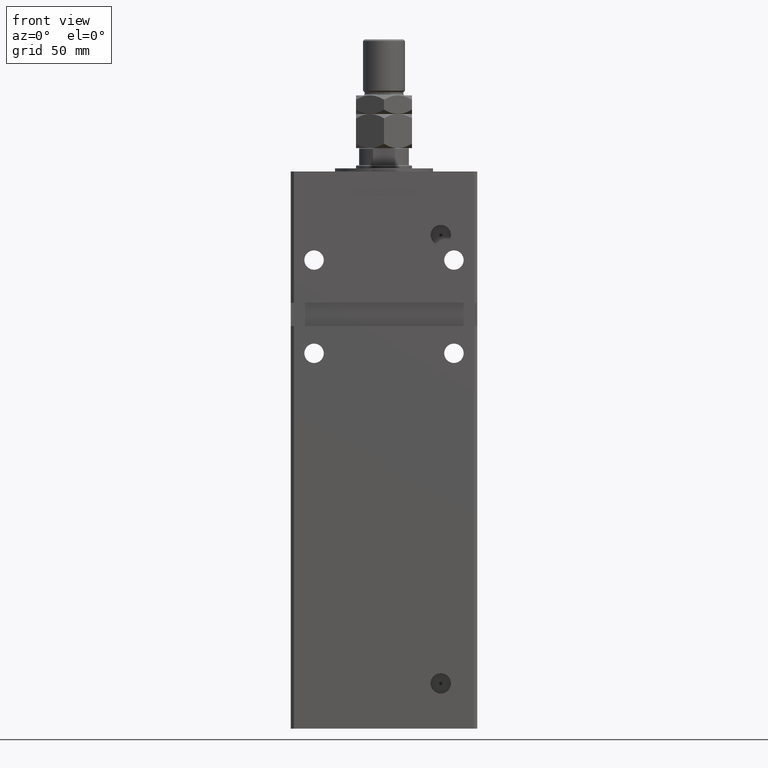
[diagram: clean part render]
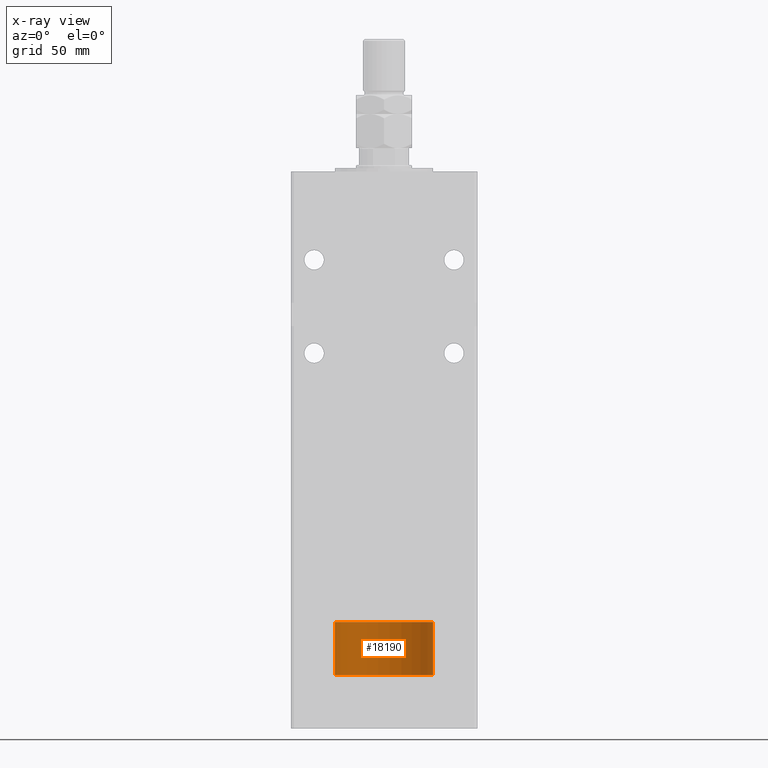
[diagram: x-ray — body ghosted, one internal face saturated and labeled with its STEP entity id]
A machine part, front view, then the same camera in x-ray: the body is ghosted and one INTERNAL B-rep face — a face not visible from any outside direction — is saturated and labeled: STEP entity #18190.
In plain terms, the highlighted cylindrical surface (partial cylindrical patch) has radius 31.5 mm, axis along (-0, -0, -1).
Its self-contained STEP definition (entity closure, byte-faithful):
#927 = DIRECTION ( 'NONE',  ( -0.000000000000000000, -0.000000000000000000, -1.000000000000000000 ) ) ;
#2639 = EDGE_CURVE ( 'NONE', #48900, #34422, #36712, .T. ) ;
#4393 = EDGE_CURVE ( 'NONE', #45283, #48900, #19642, .T. ) ;
#5123 = CARTESIAN_POINT ( 'NONE',  ( 31.50000000000000000, 3.857637417314162689E-15, 34.25000000000000000 ) ) ;
#6887 = CYLINDRICAL_SURFACE ( 'NONE', #25278, 31.50000000000000000 ) ;
#8702 = EDGE_CURVE ( 'NONE', #39990, #34422, #42618, .T. ) ;
#9232 = VECTOR ( 'NONE', #927, 1000.000000000000000 ) ;
#10042 = CARTESIAN_POINT ( 'NONE',  ( 31.50000000000000000, 3.857637417314162689E-15, 34.25000000000000000 ) ) ;
#10734 = DIRECTION ( 'NONE',  ( -0.000000000000000000, -0.000000000000000000, -1.000000000000000000 ) ) ;
#15730 = DIRECTION ( 'NONE',  ( -1.000000000000000000, 0.000000000000000000, 0.000000000000000000 ) ) ;
#18190 = ADVANCED_FACE ( 'NONE', ( #18301 ), #6887, .T. ) ;
#18301 = FACE_OUTER_BOUND ( 'NONE', #21395, .T. ) ;
#19642 = CIRCLE ( 'NONE', #49651, 31.50000000000000000 ) ;
#21395 = EDGE_LOOP ( 'NONE', ( #25999, #31546, #34289, #36936 ) ) ;
#23003 = CARTESIAN_POINT ( 'NONE',  ( 0.000000000000000000, 0.000000000000000000, 0.000000000000000000 ) ) ;
#23152 = VECTOR ( 'NONE', #10734, 1000.000000000000000 ) ;
#25278 = AXIS2_PLACEMENT_3D ( 'NONE', #53570, #36718, #15730 ) ;
#25999 = ORIENTED_EDGE ( 'NONE', *, *, #4393, .F. ) ;
#27606 = AXIS2_PLACEMENT_3D ( 'NONE', #23003, #28505, #53079 ) ;
#28505 = DIRECTION ( 'NONE',  ( 0.000000000000000000, 0.000000000000000000, 1.000000000000000000 ) ) ;
#31546 = ORIENTED_EDGE ( 'NONE', *, *, #48117, .T. ) ;
#34289 = ORIENTED_EDGE ( 'NONE', *, *, #8702, .T. ) ;
#34422 = VERTEX_POINT ( 'NONE', #47382 ) ;
#35633 = DIRECTION ( 'NONE',  ( 1.000000000000000000, 0.000000000000000000, 0.000000000000000000 ) ) ;
#36079 = CARTESIAN_POINT ( 'NONE',  ( -31.50000000000000000, 0.000000000000000000, 34.25000000000000000 ) ) ;
#36712 = LINE ( 'NONE', #53560, #23152 ) ;
#36718 = DIRECTION ( 'NONE',  ( -0.000000000000000000, -0.000000000000000000, -1.000000000000000000 ) ) ;
#36936 = ORIENTED_EDGE ( 'NONE', *, *, #2639, .F. ) ;
#39990 = VERTEX_POINT ( 'NONE', #52641 ) ;
#42618 = CIRCLE ( 'NONE', #27606, 31.50000000000000000 ) ;
#45283 = VERTEX_POINT ( 'NONE', #5123 ) ;
#47382 = CARTESIAN_POINT ( 'NONE',  ( -31.50000000000000000, 0.000000000000000000, 0.000000000000000000 ) ) ;
#48117 = EDGE_CURVE ( 'NONE', #45283, #39990, #51228, .T. ) ;
#48887 = CARTESIAN_POINT ( 'NONE',  ( 0.000000000000000000, 0.000000000000000000, 34.25000000000000000 ) ) ;
#48900 = VERTEX_POINT ( 'NONE', #36079 ) ;
#49651 = AXIS2_PLACEMENT_3D ( 'NONE', #48887, #52205, #35633 ) ;
#51228 = LINE ( 'NONE', #10042, #9232 ) ;
#52205 = DIRECTION ( 'NONE',  ( 0.000000000000000000, 0.000000000000000000, 1.000000000000000000 ) ) ;
#52641 = CARTESIAN_POINT ( 'NONE',  ( 31.50000000000000000, 3.857637417314162689E-15, 0.000000000000000000 ) ) ;
#53079 = DIRECTION ( 'NONE',  ( 1.000000000000000000, 0.000000000000000000, 0.000000000000000000 ) ) ;
#53560 = CARTESIAN_POINT ( 'NONE',  ( -31.50000000000000000, 0.000000000000000000, 34.25000000000000000 ) ) ;
#53570 = CARTESIAN_POINT ( 'NONE',  ( 0.000000000000000000, 0.000000000000000000, 34.25000000000000000 ) ) ;